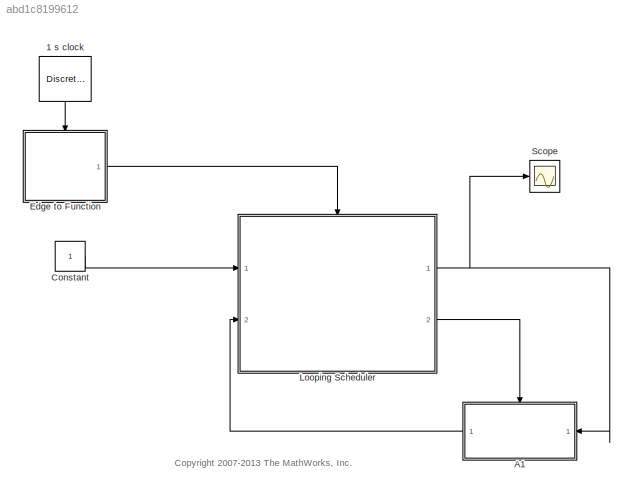
MODEL slx_abd1c8199612
KIND model
CONFIG AbsTol = auto
CONFIG EnableMultiTasking = on
CONFIG FixedStep = auto
CONFIG MaxStep = auto
CONFIG MinStep = auto
CONFIG RelTol = 1e-3
CONFIG SampleTimeConstraint = Unconstrained
CONFIG Solver = FixedStepDiscrete
CONFIG SolverName = FixedStepDiscrete
CONFIG StartTime = 0.0
CONFIG StopTime = 10
WORKSPACE source: MAT-file member
WORKSPACE deltat = 0.001
BLOCK [DiscretePulseGenerator] 1 s clock
  Period = 1
  Ports = [0, 1]
  PulseType = Time based
  PulseWidth = 10
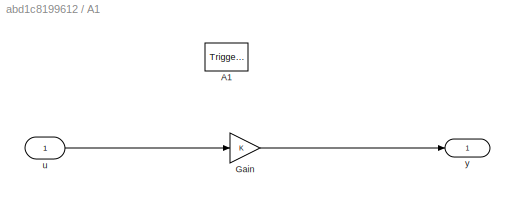
BLOCK [SubSystem] A1
  Ports = [1, 1, 0, 1]
  RequestExecContextInheritance = off
  TreatAsAtomicUnit = on
  Variant = off
BLOCK [TriggerPort] A1/A1
  Ports = []
  StatesWhenEnabling = held
  TriggerType = function-call
  VariantControl = Variant
BLOCK [Gain] A1/Gain
  OutDataTypeStr = Inherit: Inherit via internal rule
  ParamDataTypeStr = Inherit: Inherit via internal rule
  SaturateOnIntegerOverflow = off
BLOCK [Inport] A1/u
  IconDisplay = Port number
BLOCK [Outport] A1/y
  IconDisplay = Port number
BLOCK [Constant] Constant
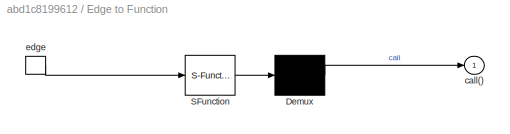
BLOCK [SubSystem] Edge to Function 
  ErrorFcn = Stateflow.Translate.translate
  PermitHierarchicalResolution = ExplicitOnly
  Ports = [0, 1, 0, 1]
  RequestExecContextInheritance = off
  SFBlockType = Chart
  TreatAsAtomicUnit = on
  Variant = off
BLOCK [Demux] Edge to Function / Demux 
  Outputs = 1
  Ports = [1, 1]
BLOCK [S-Function] Edge to Function / SFunction 
  EnableBusSupport = off
  FunctionName = sf_sfun
  PortCounts = [1 1]
  Ports = [1, 1]
  SFcnIsStateOwnerBlock = off
  SFunctionDeploymentMode = off
  Tag = Stateflow S-Function sf_loop_scheduler 2
BLOCK [Outport] Edge to Function /call()
  IconDisplay = Port number
BLOCK [TriggerPort] Edge to Function /edge
  Ports = [0, 1]
  ShowOutputPort = on
  VariantControl = Variant
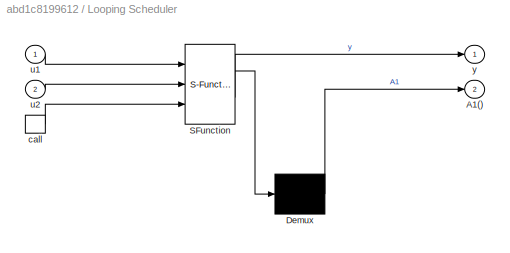
BLOCK [SubSystem] Looping Scheduler
  ErrorFcn = Stateflow.Translate.translate
  PermitHierarchicalResolution = ExplicitOnly
  Ports = [2, 2, 0, 1]
  RequestExecContextInheritance = off
  SFBlockType = Chart
  TreatAsAtomicUnit = on
  Variant = off
BLOCK [Demux] Looping Scheduler/ Demux 
  Outputs = 1
  Ports = [1, 1]
BLOCK [S-Function] Looping Scheduler/ SFunction 
  EnableBusSupport = off
  FunctionName = sf_sfun
  PortCounts = [3 2]
  Ports = [3, 2]
  SFcnIsStateOwnerBlock = off
  SFunctionDeploymentMode = off
  Tag = Stateflow S-Function sf_loop_scheduler 1
BLOCK [Outport] Looping Scheduler/A1()
  IconDisplay = Port number
  Port = 2
BLOCK [TriggerPort] Looping Scheduler/call
  Ports = [0, 1]
  ShowOutputPort = on
  TriggerType = function-call
  VariantControl = Variant
BLOCK [Inport] Looping Scheduler/u1
  IconDisplay = Port number
BLOCK [Inport] Looping Scheduler/u2
  IconDisplay = Port number
  Port = 2
BLOCK [Outport] Looping Scheduler/y
  IconDisplay = Port number
BLOCK [Scope] Scope
  NumInputPorts = 1
  Ports = [1]
  ScopeSpecificationString = Simulink.scopes.TimeScopeBlockCfg('CurrentConfiguration', extmgr.ConfigurationSet(extmgr.Configuration('Core','General UI',true),extmgr.Configuration('Core','Source UI',true),extmgr.Configuration('Sources','WiredSimulink',true,'DataLoggingSaveFormat','StructureWithTime','DataLoggingLimitDataPoints',true,'DataLoggingDecimation','1'),extmgr.Configuration('Visuals','Time Domain',true,'SerializedDispl...<+1722ch>
ANNOTATION (root): <copyright redacted>
LINE 1 s clock:1 -> Edge to Function :trigger
LINE A1/Gain:1 -> A1/y:1
LINE A1/u:1 -> A1/Gain:1
LINE A1:1 -> Looping Scheduler:2
LINE Constant:1 -> Looping Scheduler:1
LINE Edge to Function :1 -> Looping Scheduler:trigger
NET Looping Scheduler:1 -> A1:1, Scope:1
LINE Looping Scheduler:2 -> A1:trigger
note: NET lines group one-source signal fan-out (src -> all destinations, sorted); 1:1 wires keep LINE
CHART Looping
Scheduler states=0 transitions=4
CHART Edge to
Function  states=0 transitions=1
